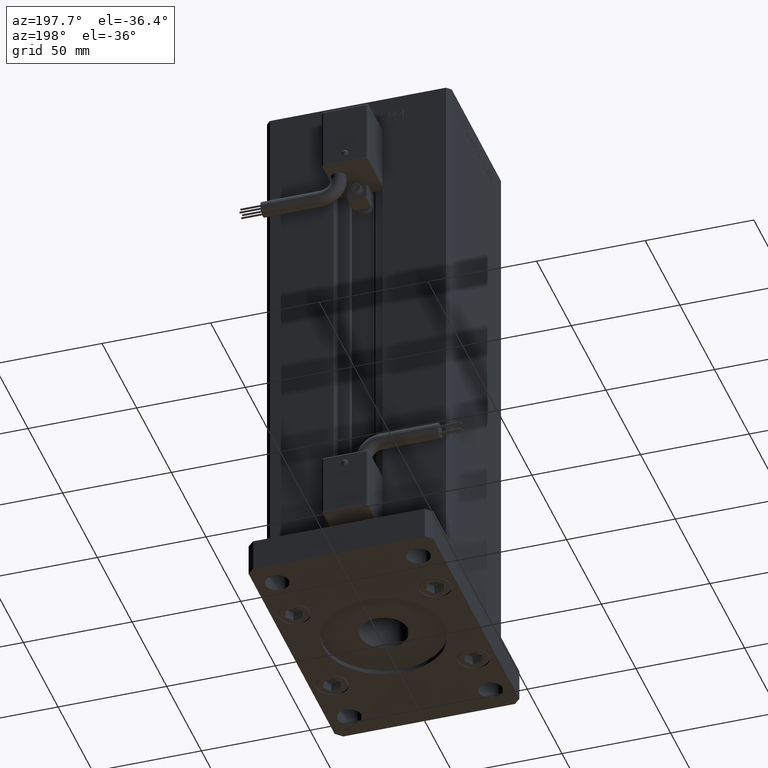
[diagram: clean part render]
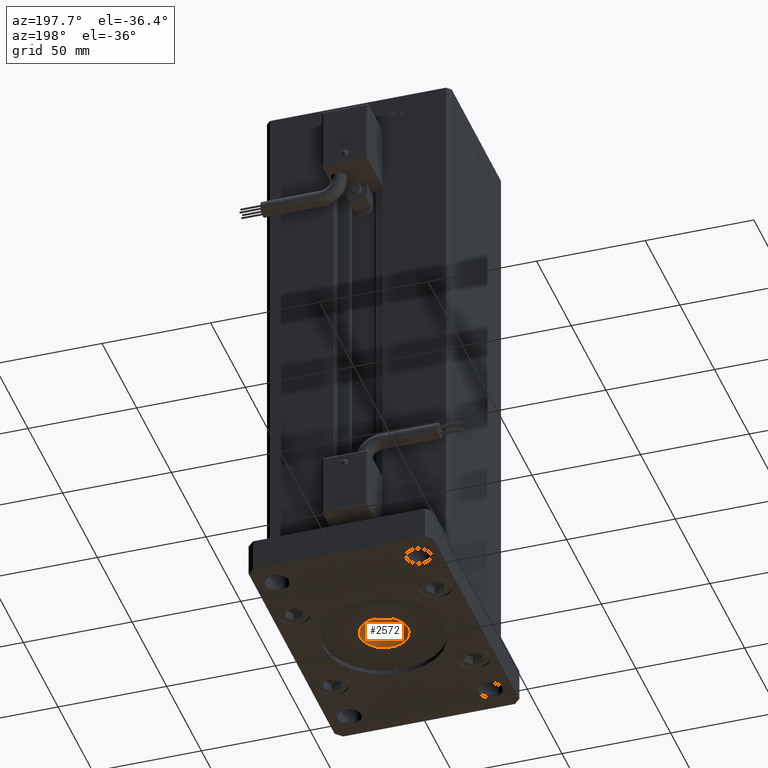
[diagram: same view with one face highlighted and labeled with its STEP entity id]
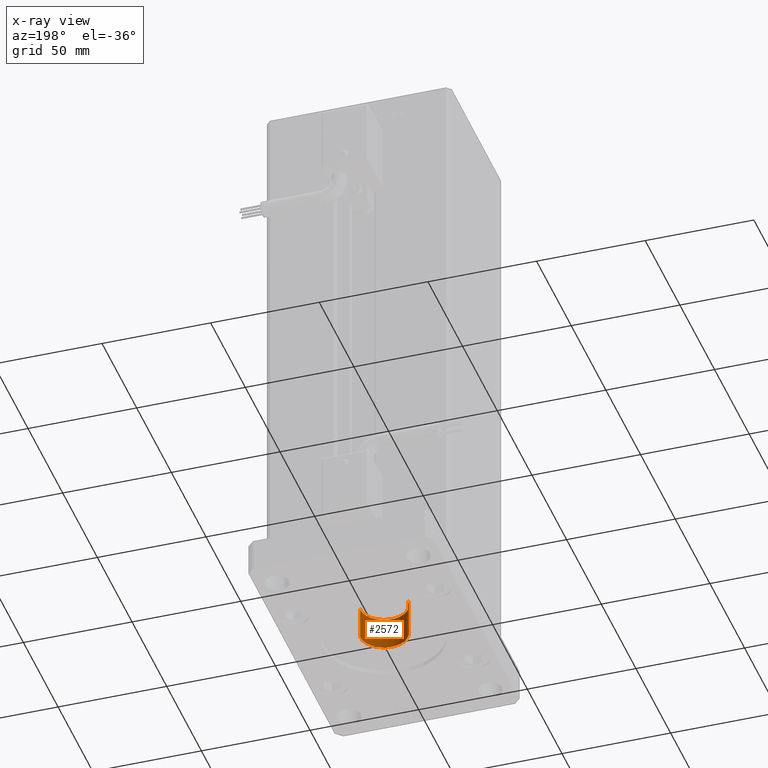
[diagram: x-ray of the same camera — body ghosted, the highlighted face saturated]
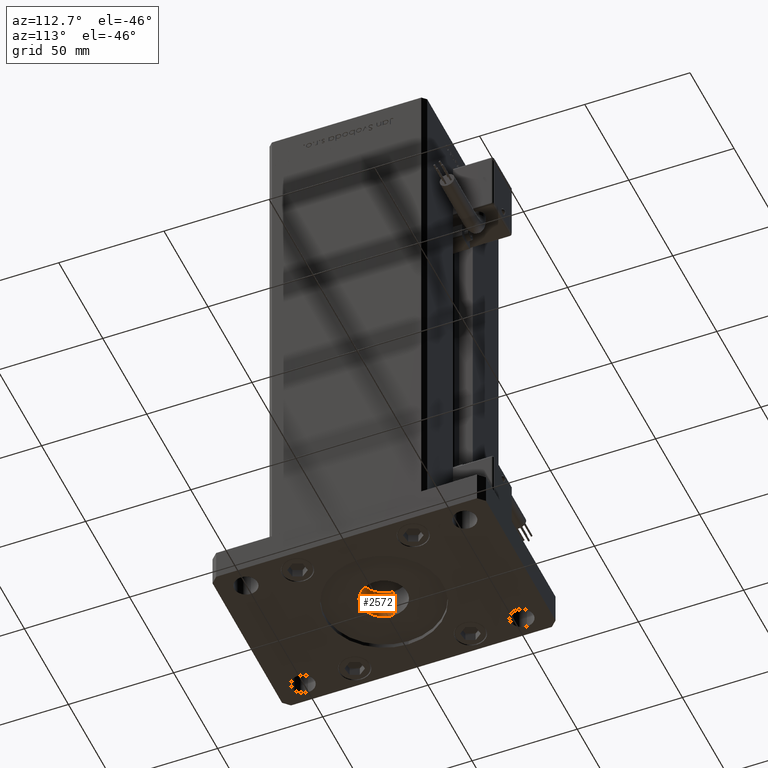
[diagram: same view with one face highlighted and labeled with its STEP entity id]
A machine part, auxiliary view. The second image highlights one B-rep face of the part: STEP entity #2572.
The next image is the same camera in x-ray: the body ghosted, the highlighted face saturated — about 0% of this face is hidden behind the body in this view.
A second angle (auxiliary view) of the same face is appended — the face is thin or edge-on in the first view.
In plain terms, the highlighted cylindrical surface (edge-blend (fillet) strip) has radius 11 mm, axis along (0, 0, 1).
Its self-contained STEP definition (entity closure, byte-faithful):
#1012 = AXIS2_PLACEMENT_3D ( 'NONE', #9693, #1995, #19333 ) ;
#1995 = DIRECTION ( 'NONE',  ( -0.000000000000000000, -0.000000000000000000, 1.000000000000000000 ) ) ;
#2572 = ADVANCED_FACE ( 'NONE', ( #23341 ), #53279, .F. ) ;
#8080 = VERTEX_POINT ( 'NONE', #36494 ) ;
#8556 = AXIS2_PLACEMENT_3D ( 'NONE', #39818, #45711, #30711 ) ;
#9693 = CARTESIAN_POINT ( 'NONE',  ( 0.000000000000000000, 0.000000000000000000, 0.000000000000000000 ) ) ;
#11121 = EDGE_LOOP ( 'NONE', ( #42185, #53264, #44761, #45506 ) ) ;
#11542 = CARTESIAN_POINT ( 'NONE',  ( -11.00000000000000000, 1.347111479062088405E-15, 0.000000000000000000 ) ) ;
#11829 = LINE ( 'NONE', #11542, #12675 ) ;
#12146 = EDGE_CURVE ( 'NONE', #37401, #8080, #14673, .T. ) ;
#12675 = VECTOR ( 'NONE', #46576, 1000.000000000000000 ) ;
#14379 = DIRECTION ( 'NONE',  ( 1.000000000000000000, 0.000000000000000000, 0.000000000000000000 ) ) ;
#14673 = LINE ( 'NONE', #32043, #24385 ) ;
#15342 = EDGE_CURVE ( 'NONE', #41939, #8080, #20896, .T. ) ;
#18356 = CARTESIAN_POINT ( 'NONE',  ( 0.000000000000000000, 0.000000000000000000, 17.00000000000000000 ) ) ;
#19333 = DIRECTION ( 'NONE',  ( 1.000000000000000000, 0.000000000000000000, 0.000000000000000000 ) ) ;
#20896 = CIRCLE ( 'NONE', #51863, 11.00000000000000000 ) ;
#23341 = FACE_OUTER_BOUND ( 'NONE', #11121, .T. ) ;
#23780 = CARTESIAN_POINT ( 'NONE',  ( -11.00000000000000000, 1.347111479062088405E-15, 17.00000000000000000 ) ) ;
#24385 = VECTOR ( 'NONE', #54815, 1000.000000000000000 ) ;
#27552 = VERTEX_POINT ( 'NONE', #42299 ) ;
#30711 = DIRECTION ( 'NONE',  ( -1.000000000000000000, 0.000000000000000000, 0.000000000000000000 ) ) ;
#30906 = DIRECTION ( 'NONE',  ( 0.000000000000000000, 0.000000000000000000, 1.000000000000000000 ) ) ;
#32043 = CARTESIAN_POINT ( 'NONE',  ( 11.00000000000000000, 0.000000000000000000, 0.000000000000000000 ) ) ;
#32165 = CIRCLE ( 'NONE', #8556, 11.00000000000000000 ) ;
#35126 = EDGE_CURVE ( 'NONE', #27552, #41939, #11829, .T. ) ;
#36494 = CARTESIAN_POINT ( 'NONE',  ( 11.00000000000000000, 0.000000000000000000, 17.00000000000000000 ) ) ;
#37401 = VERTEX_POINT ( 'NONE', #56091 ) ;
#39818 = CARTESIAN_POINT ( 'NONE',  ( 0.000000000000000000, 0.000000000000000000, 2.000000000000000000 ) ) ;
#41939 = VERTEX_POINT ( 'NONE', #23780 ) ;
#42185 = ORIENTED_EDGE ( 'NONE', *, *, #54857, .F. ) ;
#42299 = CARTESIAN_POINT ( 'NONE',  ( -11.00000000000000000, 1.347111479062088405E-15, 2.000000000000000000 ) ) ;
#44761 = ORIENTED_EDGE ( 'NONE', *, *, #15342, .T. ) ;
#45506 = ORIENTED_EDGE ( 'NONE', *, *, #12146, .F. ) ;
#45711 = DIRECTION ( 'NONE',  ( -0.000000000000000000, -0.000000000000000000, 1.000000000000000000 ) ) ;
#46576 = DIRECTION ( 'NONE',  ( -0.000000000000000000, -0.000000000000000000, 1.000000000000000000 ) ) ;
#51863 = AXIS2_PLACEMENT_3D ( 'NONE', #18356, #30906, #14379 ) ;
#53264 = ORIENTED_EDGE ( 'NONE', *, *, #35126, .T. ) ;
#53279 = CYLINDRICAL_SURFACE ( 'NONE', #1012, 11.00000000000000000 ) ;
#54815 = DIRECTION ( 'NONE',  ( -0.000000000000000000, -0.000000000000000000, 1.000000000000000000 ) ) ;
#54857 = EDGE_CURVE ( 'NONE', #27552, #37401, #32165, .T. ) ;
#56091 = CARTESIAN_POINT ( 'NONE',  ( 11.00000000000000000, 0.000000000000000000, 2.000000000000000000 ) ) ;